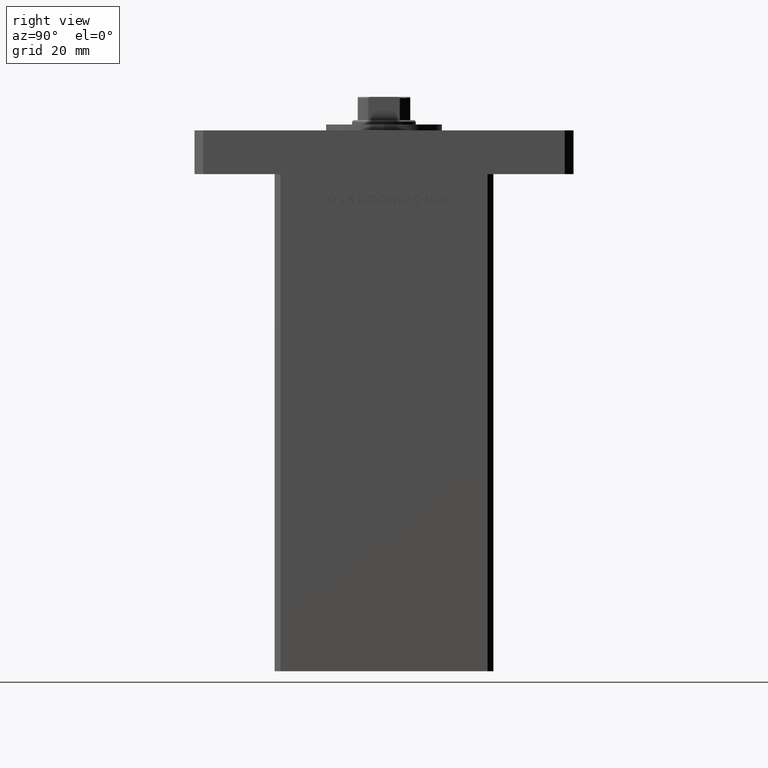
[diagram: clean part render]
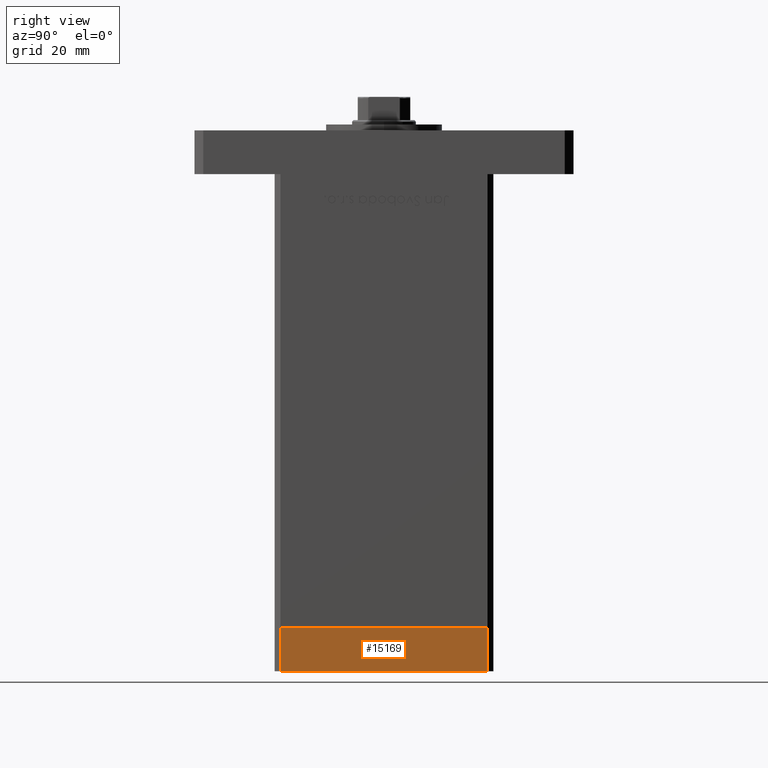
[diagram: same view with one face highlighted and labeled with its STEP entity id]
A machine part, right view. The second image highlights one B-rep face of the part: STEP entity #15169.
In plain terms, the highlighted planar face has unit normal (1, -0, 0).
Its self-contained STEP definition (entity closure, byte-faithful):
#5187 = CARTESIAN_POINT ( 'NONE',  ( -42.50000000000000000, -35.50000000000000711, -15.00000000000000000 ) ) ;
#5757 = DIRECTION ( 'NONE',  ( 9.773090005503140331E-17, -1.000000000000000000, 0.000000000000000000 ) ) ;
#6449 = DIRECTION ( 'NONE',  ( 0.000000000000000000, 0.000000000000000000, 1.000000000000000000 ) ) ;
#7001 = CARTESIAN_POINT ( 'NONE',  ( -42.50000000000000711, 35.49999999999997158, 0.000000000000000000 ) ) ;
#7536 = CARTESIAN_POINT ( 'NONE',  ( -42.50000000000000000, -35.50000000000000711, -15.00000000000000000 ) ) ;
#7555 = VERTEX_POINT ( 'NONE', #5187 ) ;
#8753 = LINE ( 'NONE', #22274, #52036 ) ;
#13787 = VERTEX_POINT ( 'NONE', #34564 ) ;
#13981 = CARTESIAN_POINT ( 'NONE',  ( -42.50000000000000000, -35.50000000000000711, 0.000000000000000000 ) ) ;
#14670 = AXIS2_PLACEMENT_3D ( 'NONE', #27921, #46011, #15449 ) ;
#14921 = EDGE_CURVE ( 'NONE', #52067, #13787, #29314, .T. ) ;
#15114 = LINE ( 'NONE', #7536, #33817 ) ;
#15169 = ADVANCED_FACE ( 'NONE', ( #36339 ), #29452, .T. ) ;
#15449 = DIRECTION ( 'NONE',  ( 9.773090005503140331E-17, -1.000000000000000000, 0.000000000000000000 ) ) ;
#16324 = ORIENTED_EDGE ( 'NONE', *, *, #33983, .F. ) ;
#17435 = EDGE_CURVE ( 'NONE', #7555, #40010, #15114, .T. ) ;
#19473 = DIRECTION ( 'NONE',  ( 9.773090005503140331E-17, -1.000000000000000000, 0.000000000000000000 ) ) ;
#21172 = CARTESIAN_POINT ( 'NONE',  ( -42.50000000000000711, 35.49999999999997158, -15.00000000000000000 ) ) ;
#21694 = DIRECTION ( 'NONE',  ( 0.000000000000000000, 0.000000000000000000, 1.000000000000000000 ) ) ;
#22274 = CARTESIAN_POINT ( 'NONE',  ( -42.50000000000000711, 35.49999999999997158, -15.00000000000000000 ) ) ;
#25934 = CARTESIAN_POINT ( 'NONE',  ( -42.50000000000000711, 35.49999999999997158, -15.00000000000000000 ) ) ;
#27921 = CARTESIAN_POINT ( 'NONE',  ( -42.50000000000000711, 35.49999999999997158, -15.00000000000000000 ) ) ;
#29314 = LINE ( 'NONE', #21172, #32894 ) ;
#29452 = PLANE ( 'NONE',  #14670 ) ;
#32894 = VECTOR ( 'NONE', #21694, 1000.000000000000000 ) ;
#33817 = VECTOR ( 'NONE', #6449, 1000.000000000000000 ) ;
#33983 = EDGE_CURVE ( 'NONE', #13787, #40010, #52578, .T. ) ;
#34487 = ORIENTED_EDGE ( 'NONE', *, *, #14921, .F. ) ;
#34564 = CARTESIAN_POINT ( 'NONE',  ( -42.50000000000000711, 35.49999999999997158, 0.000000000000000000 ) ) ;
#36339 = FACE_OUTER_BOUND ( 'NONE', #42443, .T. ) ;
#40010 = VERTEX_POINT ( 'NONE', #13981 ) ;
#42016 = VECTOR ( 'NONE', #19473, 1000.000000000000000 ) ;
#42390 = ORIENTED_EDGE ( 'NONE', *, *, #17435, .T. ) ;
#42443 = EDGE_LOOP ( 'NONE', ( #16324, #34487, #42714, #42390 ) ) ;
#42714 = ORIENTED_EDGE ( 'NONE', *, *, #49856, .T. ) ;
#46011 = DIRECTION ( 'NONE',  ( -1.000000000000000000, -9.773090005503140331E-17, 0.000000000000000000 ) ) ;
#49856 = EDGE_CURVE ( 'NONE', #52067, #7555, #8753, .T. ) ;
#52036 = VECTOR ( 'NONE', #5757, 1000.000000000000000 ) ;
#52067 = VERTEX_POINT ( 'NONE', #25934 ) ;
#52578 = LINE ( 'NONE', #7001, #42016 ) ;